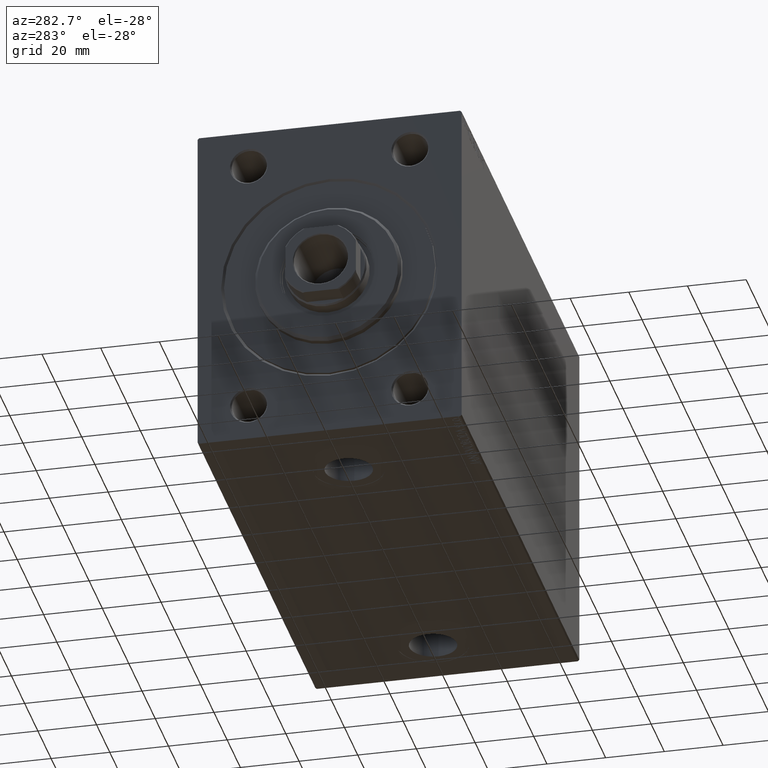
[diagram: clean part render]
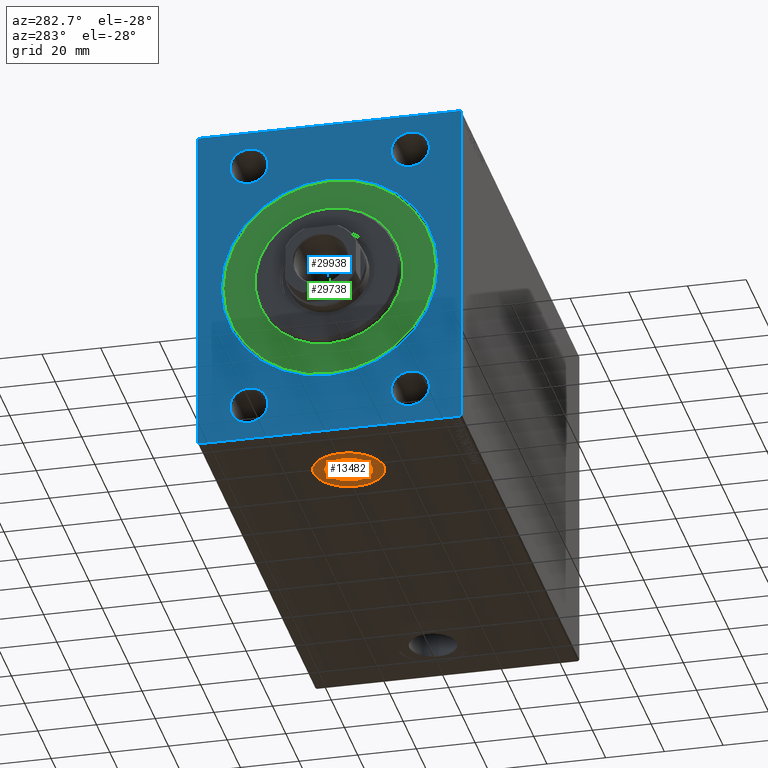
[diagram: same view with three faces highlighted in distinct colors, each labeled with its STEP entity id]
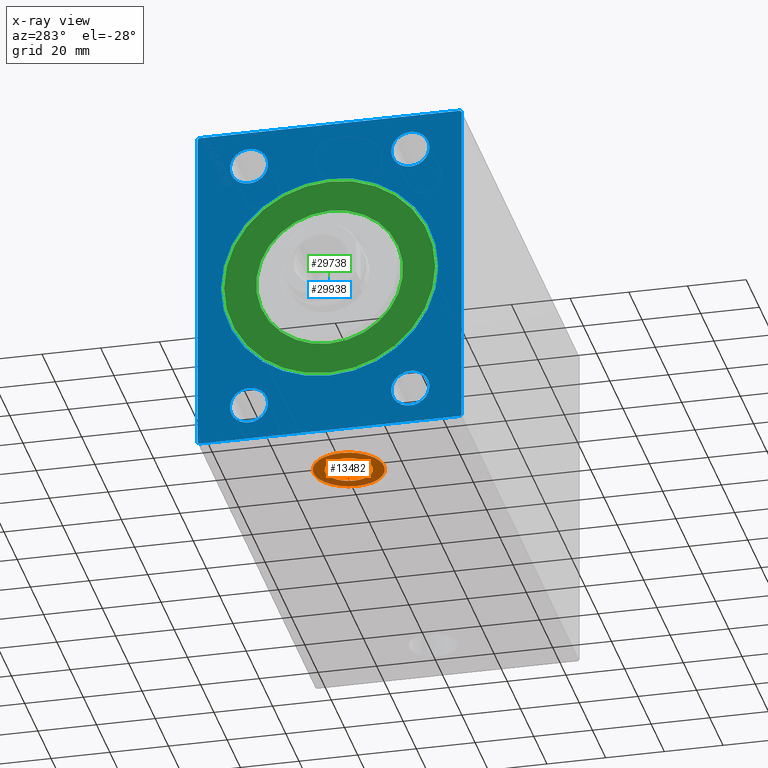
[diagram: x-ray of the same camera — body ghosted, the three highlighted faces saturated]
A machine part, auxiliary view with three faces highlighted in distinct colors.
The next image is the same camera in x-ray (body ghosted, the three faces saturated) — at least one of them is partly hidden behind the body in this view.
Their STEP definitions:

[orange] entity #13482 — the highlighted planar face has unit normal (0, 0, -1).
#344 = CARTESIAN_POINT ( 'NONE',  ( 17.00000000000000000, -3.767935990684166618E-15, -57.39999999999999147 ) ) ;
#1780 = DIRECTION ( 'NONE',  ( 0.000000000000000000, 0.000000000000000000, -1.000000000000000000 ) ) ;
#2003 = DIRECTION ( 'NONE',  ( 0.000000000000000000, 0.000000000000000000, -1.000000000000000000 ) ) ;
#2226 = CARTESIAN_POINT ( 'NONE',  ( 29.00000000000000000, -3.767935990684166618E-15, -57.39999999999999147 ) ) ;
#3555 = EDGE_LOOP ( 'NONE', ( #8517, #8887 ) ) ;
#4796 = FACE_BOUND ( 'NONE', #3555, .T. ) ;
#4941 = CIRCLE ( 'NONE', #43343, 8.084999999999999076 ) ;
#4994 = ORIENTED_EDGE ( 'NONE', *, *, #9388, .T. ) ;
#5274 = DIRECTION ( 'NONE',  ( -1.000000000000000000, 0.000000000000000000, 0.000000000000000000 ) ) ;
#5285 = EDGE_LOOP ( 'NONE', ( #34666, #4994 ) ) ;
#6137 = EDGE_CURVE ( 'NONE', #22817, #34442, #32312, .T. ) ;
#6621 = DIRECTION ( 'NONE',  ( 0.000000000000000000, 0.000000000000000000, -1.000000000000000000 ) ) ;
#8517 = ORIENTED_EDGE ( 'NONE', *, *, #45620, .F. ) ;
#8768 = VERTEX_POINT ( 'NONE', #31039 ) ;
#8887 = ORIENTED_EDGE ( 'NONE', *, *, #34395, .F. ) ;
#8977 = CIRCLE ( 'NONE', #36230, 8.084999999999999076 ) ;
#9388 = EDGE_CURVE ( 'NONE', #34442, #22817, #33122, .T. ) ;
#11768 = DIRECTION ( 'NONE',  ( 0.000000000000000000, 0.000000000000000000, -1.000000000000000000 ) ) ;
#13482 = ADVANCED_FACE ( 'NONE', ( #4796, #33437 ), #43846, .T. ) ;
#15552 = AXIS2_PLACEMENT_3D ( 'NONE', #26253, #2003, #30189 ) ;
#16569 = DIRECTION ( 'NONE',  ( -1.000000000000000000, 0.000000000000000000, 0.000000000000000000 ) ) ;
#17162 = CARTESIAN_POINT ( 'NONE',  ( 20.91500000000000270, -3.767935990684166618E-15, -57.39999999999999147 ) ) ;
#22079 = VERTEX_POINT ( 'NONE', #17162 ) ;
#22817 = VERTEX_POINT ( 'NONE', #344 ) ;
#25610 = CARTESIAN_POINT ( 'NONE',  ( 29.00000000000000000, -3.767935990684166618E-15, -57.39999999999999147 ) ) ;
#26079 = CARTESIAN_POINT ( 'NONE',  ( 29.00000000000000000, -3.767935990684166618E-15, -57.39999999999999147 ) ) ;
#26253 = CARTESIAN_POINT ( 'NONE',  ( 0.000000000000000000, 0.000000000000000000, -57.39999999999999147 ) ) ;
#30086 = AXIS2_PLACEMENT_3D ( 'NONE', #43637, #1780, #5274 ) ;
#30189 = DIRECTION ( 'NONE',  ( -1.000000000000000000, 0.000000000000000000, -0.000000000000000000 ) ) ;
#31039 = CARTESIAN_POINT ( 'NONE',  ( 37.08500000000000085, -2.777809053573531857E-15, -57.39999999999999147 ) ) ;
#32312 = CIRCLE ( 'NONE', #30086, 12.00000000000000000 ) ;
#33089 = AXIS2_PLACEMENT_3D ( 'NONE', #2226, #6621, #16569 ) ;
#33122 = CIRCLE ( 'NONE', #33089, 12.00000000000000000 ) ;
#33437 = FACE_OUTER_BOUND ( 'NONE', #5285, .T. ) ;
#34395 = EDGE_CURVE ( 'NONE', #8768, #22079, #4941, .T. ) ;
#34442 = VERTEX_POINT ( 'NONE', #39492 ) ;
#34666 = ORIENTED_EDGE ( 'NONE', *, *, #6137, .T. ) ;
#36230 = AXIS2_PLACEMENT_3D ( 'NONE', #26079, #44362, #40653 ) ;
#39492 = CARTESIAN_POINT ( 'NONE',  ( 41.00000000000000711, -2.298359831707342079E-15, -57.39999999999999147 ) ) ;
#40653 = DIRECTION ( 'NONE',  ( -1.000000000000000000, 0.000000000000000000, 0.000000000000000000 ) ) ;
#42985 = DIRECTION ( 'NONE',  ( -1.000000000000000000, 0.000000000000000000, 0.000000000000000000 ) ) ;
#43343 = AXIS2_PLACEMENT_3D ( 'NONE', #25610, #11768, #42985 ) ;
#43637 = CARTESIAN_POINT ( 'NONE',  ( 29.00000000000000000, -3.767935990684166618E-15, -57.39999999999999147 ) ) ;
#43846 = PLANE ( 'NONE',  #15552 ) ;
#44362 = DIRECTION ( 'NONE',  ( 0.000000000000000000, 0.000000000000000000, -1.000000000000000000 ) ) ;
#45620 = EDGE_CURVE ( 'NONE', #22079, #8768, #8977, .T. ) ;

[blue] entity #29938 — the highlighted planar face has unit normal (1, 0, 0).
#1 = FACE_BOUND ( 'NONE', #8071, .T. ) ;
#391 = CARTESIAN_POINT ( 'NONE',  ( 0.000000000000000000, -45.00000000000000000, 56.99999999999999289 ) ) ;
#1086 = EDGE_CURVE ( 'NONE', #1646, #45429, #27843, .T. ) ;
#1318 = CARTESIAN_POINT ( 'NONE',  ( 0.000000000000000000, 45.00000000000002842, -56.99999999999996447 ) ) ;
#1508 = EDGE_CURVE ( 'NONE', #29262, #28657, #15194, .T. ) ;
#1646 = VERTEX_POINT ( 'NONE', #11026 ) ;
#2504 = ORIENTED_EDGE ( 'NONE', *, *, #12825, .T. ) ;
#3392 = AXIS2_PLACEMENT_3D ( 'NONE', #28173, #27257, #9721 ) ;
#3579 = ORIENTED_EDGE ( 'NONE', *, *, #4152, .T. ) ;
#4152 = EDGE_CURVE ( 'NONE', #16555, #31194, #21168, .T. ) ;
#4794 = CARTESIAN_POINT ( 'NONE',  ( 0.000000000000000000, 45.00000000000001421, 57.00000000000000711 ) ) ;
#5014 = DIRECTION ( 'NONE',  ( 0.000000000000000000, 0.000000000000000000, -1.000000000000000000 ) ) ;
#5127 = CARTESIAN_POINT ( 'NONE',  ( 0.000000000000000000, -27.49999999999999645, -45.00000000000001421 ) ) ;
#5242 = EDGE_CURVE ( 'NONE', #35902, #39457, #24156, .T. ) ;
#5272 = EDGE_LOOP ( 'NONE', ( #33429, #2504 ) ) ;
#5277 = CIRCLE ( 'NONE', #24428, 6.499999999999977796 ) ;
#5797 = DIRECTION ( 'NONE',  ( 1.000000000000000000, 0.000000000000000000, 0.000000000000000000 ) ) ;
#5852 = DIRECTION ( 'NONE',  ( 0.000000000000000000, -1.000000000000000000, -1.541976423090495140E-16 ) ) ;
#5965 = CIRCLE ( 'NONE', #33217, 37.00000000000003553 ) ;
#6249 = AXIS2_PLACEMENT_3D ( 'NONE', #10824, #17986, #32725 ) ;
#6677 = ORIENTED_EDGE ( 'NONE', *, *, #23586, .T. ) ;
#6851 = VERTEX_POINT ( 'NONE', #42513 ) ;
#6996 = EDGE_LOOP ( 'NONE', ( #3579, #35693 ) ) ;
#7503 = CARTESIAN_POINT ( 'NONE',  ( 0.000000000000000000, -27.49999999999999645, 44.99999999999998579 ) ) ;
#7818 = VERTEX_POINT ( 'NONE', #38423 ) ;
#8071 = EDGE_LOOP ( 'NONE', ( #12850, #16868 ) ) ;
#8083 = AXIS2_PLACEMENT_3D ( 'NONE', #26048, #15438, #40161 ) ;
#8100 = ORIENTED_EDGE ( 'NONE', *, *, #23799, .T. ) ;
#8388 = DIRECTION ( 'NONE',  ( 1.000000000000000000, 0.000000000000000000, 0.000000000000000000 ) ) ;
#8390 = DIRECTION ( 'NONE',  ( -0.000000000000000000, -0.7071067811865672237, 0.7071067811865279218 ) ) ;
#8528 = VERTEX_POINT ( 'NONE', #37799 ) ;
#8671 = AXIS2_PLACEMENT_3D ( 'NONE', #43962, #29844, #26613 ) ;
#8697 = ORIENTED_EDGE ( 'NONE', *, *, #20781, .F. ) ;
#8952 = DIRECTION ( 'NONE',  ( 1.000000000000000000, 0.000000000000000000, 0.000000000000000000 ) ) ;
#9314 = LINE ( 'NONE', #23391, #41102 ) ;
#9503 = VECTOR ( 'NONE', #8390, 1000.000000000000000 ) ;
#9721 = DIRECTION ( 'NONE',  ( 0.000000000000000000, 0.000000000000000000, -1.000000000000000000 ) ) ;
#9982 = EDGE_CURVE ( 'NONE', #17808, #19911, #39077, .T. ) ;
#9995 = ORIENTED_EDGE ( 'NONE', *, *, #21619, .T. ) ;
#10217 = EDGE_CURVE ( 'NONE', #38871, #7818, #42018, .T. ) ;
#10296 = AXIS2_PLACEMENT_3D ( 'NONE', #37435, #5797, #27700 ) ;
#10319 = CARTESIAN_POINT ( 'NONE',  ( 0.000000000000000000, 27.50000000000000355, 38.50000000000000711 ) ) ;
#10824 = CARTESIAN_POINT ( 'NONE',  ( 0.000000000000000000, 27.50000000000000355, 44.99999999999998579 ) ) ;
#11026 = CARTESIAN_POINT ( 'NONE',  ( 0.000000000000000000, -27.49999999999999645, -51.49999999999999289 ) ) ;
#12142 = CARTESIAN_POINT ( 'NONE',  ( 0.000000000000000000, 27.50000000000000355, -38.50000000000003553 ) ) ;
#12825 = EDGE_CURVE ( 'NONE', #39457, #35902, #42082, .T. ) ;
#12850 = ORIENTED_EDGE ( 'NONE', *, *, #10217, .T. ) ;
#13183 = FACE_OUTER_BOUND ( 'NONE', #23055, .T. ) ;
#13221 = DIRECTION ( 'NONE',  ( 0.000000000000000000, 0.000000000000000000, -1.000000000000000000 ) ) ;
#13415 = FACE_BOUND ( 'NONE', #5272, .T. ) ;
#13658 = DIRECTION ( 'NONE',  ( 0.000000000000000000, 0.000000000000000000, -1.000000000000000000 ) ) ;
#14017 = DIRECTION ( 'NONE',  ( 0.000000000000000000, 0.000000000000000000, -1.000000000000000000 ) ) ;
#14590 = DIRECTION ( 'NONE',  ( 0.000000000000000000, 0.000000000000000000, -1.000000000000000000 ) ) ;
#15194 = LINE ( 'NONE', #1318, #43269 ) ;
#15438 = DIRECTION ( 'NONE',  ( 1.000000000000000000, 0.000000000000000000, 0.000000000000000000 ) ) ;
#16555 = VERTEX_POINT ( 'NONE', #34012 ) ;
#16576 = CIRCLE ( 'NONE', #6249, 6.499999999999977796 ) ;
#16598 = CARTESIAN_POINT ( 'NONE',  ( 0.000000000000000000, -27.49999999999999645, 38.50000000000000711 ) ) ;
#16676 = EDGE_CURVE ( 'NONE', #31194, #16555, #5965, .T. ) ;
#16868 = ORIENTED_EDGE ( 'NONE', *, *, #45466, .T. ) ;
#16879 = PLANE ( 'NONE',  #3392 ) ;
#17359 = CARTESIAN_POINT ( 'NONE',  ( 0.000000000000000000, 27.50000000000000355, -45.00000000000001421 ) ) ;
#17808 = VERTEX_POINT ( 'NONE', #23733 ) ;
#17986 = DIRECTION ( 'NONE',  ( 1.000000000000000000, 0.000000000000000000, 0.000000000000000000 ) ) ;
#18001 = VECTOR ( 'NONE', #14017, 1000.000000000000000 ) ;
#18280 = DIRECTION ( 'NONE',  ( 1.000000000000000000, 0.000000000000000000, 0.000000000000000000 ) ) ;
#18391 = LINE ( 'NONE', #42440, #18001 ) ;
#18537 = DIRECTION ( 'NONE',  ( 0.000000000000000000, 0.000000000000000000, -1.000000000000000000 ) ) ;
#18612 = DIRECTION ( 'NONE',  ( -0.000000000000000000, 0.7071067811865474617, 0.7071067811865474617 ) ) ;
#18761 = ORIENTED_EDGE ( 'NONE', *, *, #21207, .F. ) ;
#19190 = ORIENTED_EDGE ( 'NONE', *, *, #34875, .T. ) ;
#19212 = DIRECTION ( 'NONE',  ( 1.000000000000000000, 0.000000000000000000, 0.000000000000000000 ) ) ;
#19234 = CARTESIAN_POINT ( 'NONE',  ( 0.000000000000000000, -44.49999999999997158, -57.49999999999999289 ) ) ;
#19336 = CARTESIAN_POINT ( 'NONE',  ( 0.000000000000000000, 0.000000000000000000, 0.000000000000000000 ) ) ;
#19753 = VECTOR ( 'NONE', #34102, 1000.000000000000114 ) ;
#19911 = VERTEX_POINT ( 'NONE', #10319 ) ;
#20008 = LINE ( 'NONE', #34321, #19753 ) ;
#20129 = CARTESIAN_POINT ( 'NONE',  ( 0.000000000000000000, -27.49999999999999645, -38.50000000000003553 ) ) ;
#20141 = CARTESIAN_POINT ( 'NONE',  ( 0.000000000000000000, -27.49999999999999645, -45.00000000000001421 ) ) ;
#20531 = VERTEX_POINT ( 'NONE', #4794 ) ;
#20664 = AXIS2_PLACEMENT_3D ( 'NONE', #7503, #8388, #36326 ) ;
#20781 = EDGE_CURVE ( 'NONE', #38373, #6851, #18391, .T. ) ;
#21081 = EDGE_LOOP ( 'NONE', ( #32369, #8100 ) ) ;
#21168 = CIRCLE ( 'NONE', #27052, 37.00000000000003553 ) ;
#21207 = EDGE_CURVE ( 'NONE', #40657, #28657, #45502, .T. ) ;
#21382 = ORIENTED_EDGE ( 'NONE', *, *, #29425, .F. ) ;
#21510 = LINE ( 'NONE', #21726, #38352 ) ;
#21619 = EDGE_CURVE ( 'NONE', #38373, #21700, #28327, .T. ) ;
#21700 = VERTEX_POINT ( 'NONE', #24865 ) ;
#21726 = CARTESIAN_POINT ( 'NONE',  ( 0.000000000000000000, 45.00000000000002842, -57.49999999999999289 ) ) ;
#23055 = EDGE_LOOP ( 'NONE', ( #8697, #9995, #21382, #19190, #40784, #25265, #18761, #39353 ) ) ;
#23391 = CARTESIAN_POINT ( 'NONE',  ( 0.000000000000000000, 45.00000000000001421, 57.50000000000000711 ) ) ;
#23586 = EDGE_CURVE ( 'NONE', #45429, #1646, #39447, .T. ) ;
#23607 = DIRECTION ( 'NONE',  ( 1.000000000000000000, 0.000000000000000000, 0.000000000000000000 ) ) ;
#23733 = CARTESIAN_POINT ( 'NONE',  ( 0.000000000000000000, 27.50000000000000355, 51.49999999999996447 ) ) ;
#23799 = EDGE_CURVE ( 'NONE', #19911, #17808, #16576, .T. ) ;
#24156 = CIRCLE ( 'NONE', #8671, 6.499999999999977796 ) ;
#24428 = AXIS2_PLACEMENT_3D ( 'NONE', #17359, #30983, #13658 ) ;
#24865 = CARTESIAN_POINT ( 'NONE',  ( 0.000000000000000000, -44.49999999999997158, 57.49999999999999289 ) ) ;
#25265 = ORIENTED_EDGE ( 'NONE', *, *, #1508, .T. ) ;
#25977 = ORIENTED_EDGE ( 'NONE', *, *, #1086, .T. ) ;
#26048 = CARTESIAN_POINT ( 'NONE',  ( 0.000000000000000000, 27.50000000000000355, -45.00000000000001421 ) ) ;
#26613 = DIRECTION ( 'NONE',  ( 0.000000000000000000, 0.000000000000000000, -1.000000000000000000 ) ) ;
#27052 = AXIS2_PLACEMENT_3D ( 'NONE', #19336, #8952, #5014 ) ;
#27257 = DIRECTION ( 'NONE',  ( 1.000000000000000000, 0.000000000000000000, 0.000000000000000000 ) ) ;
#27700 = DIRECTION ( 'NONE',  ( 0.000000000000000000, 0.000000000000000000, -1.000000000000000000 ) ) ;
#27843 = CIRCLE ( 'NONE', #39667, 6.499999999999977796 ) ;
#28173 = CARTESIAN_POINT ( 'NONE',  ( 0.000000000000000000, 0.000000000000000000, 0.000000000000000000 ) ) ;
#28327 = LINE ( 'NONE', #391, #34990 ) ;
#28657 = VERTEX_POINT ( 'NONE', #40770 ) ;
#29262 = VERTEX_POINT ( 'NONE', #43295 ) ;
#29425 = EDGE_CURVE ( 'NONE', #8528, #21700, #9314, .T. ) ;
#29844 = DIRECTION ( 'NONE',  ( 1.000000000000000000, 0.000000000000000000, 0.000000000000000000 ) ) ;
#29938 = ADVANCED_FACE ( 'NONE', ( #38351, #38584, #13415, #31644, #1, #13183 ), #16879, .F. ) ;
#29956 = DIRECTION ( 'NONE',  ( 0.000000000000000000, -0.7071067811865279218, -0.7071067811865672237 ) ) ;
#30026 = CARTESIAN_POINT ( 'NONE',  ( 0.000000000000000000, -45.00000000000000000, 56.99999999999999289 ) ) ;
#30983 = DIRECTION ( 'NONE',  ( 1.000000000000000000, 0.000000000000000000, 0.000000000000000000 ) ) ;
#31194 = VERTEX_POINT ( 'NONE', #44100 ) ;
#31644 = FACE_BOUND ( 'NONE', #21081, .T. ) ;
#32134 = CARTESIAN_POINT ( 'NONE',  ( 0.000000000000000000, 0.000000000000000000, 0.000000000000000000 ) ) ;
#32369 = ORIENTED_EDGE ( 'NONE', *, *, #9982, .T. ) ;
#32725 = DIRECTION ( 'NONE',  ( 0.000000000000000000, 0.000000000000000000, -1.000000000000000000 ) ) ;
#33217 = AXIS2_PLACEMENT_3D ( 'NONE', #32134, #18280, #14590 ) ;
#33429 = ORIENTED_EDGE ( 'NONE', *, *, #5242, .T. ) ;
#34012 = CARTESIAN_POINT ( 'NONE',  ( 0.000000000000000000, 0.000000000000000000, 37.00000000000003553 ) ) ;
#34102 = DIRECTION ( 'NONE',  ( -0.000000000000000000, 0.7071067811865474617, -0.7071067811865474617 ) ) ;
#34266 = AXIS2_PLACEMENT_3D ( 'NONE', #5127, #19212, #18537 ) ;
#34321 = CARTESIAN_POINT ( 'NONE',  ( 0.000000000000000000, 44.50000000000001421, 57.50000000000000711 ) ) ;
#34875 = EDGE_CURVE ( 'NONE', #8528, #20531, #20008, .T. ) ;
#34990 = VECTOR ( 'NONE', #18612, 1000.000000000000114 ) ;
#35693 = ORIENTED_EDGE ( 'NONE', *, *, #16676, .T. ) ;
#35902 = VERTEX_POINT ( 'NONE', #45156 ) ;
#36326 = DIRECTION ( 'NONE',  ( 0.000000000000000000, 0.000000000000000000, -1.000000000000000000 ) ) ;
#36392 = VECTOR ( 'NONE', #37876, 1000.000000000000000 ) ;
#37083 = EDGE_CURVE ( 'NONE', #40657, #6851, #40258, .T. ) ;
#37435 = CARTESIAN_POINT ( 'NONE',  ( 0.000000000000000000, 27.50000000000000355, 44.99999999999998579 ) ) ;
#37799 = CARTESIAN_POINT ( 'NONE',  ( 0.000000000000000000, 44.50000000000001421, 57.50000000000000711 ) ) ;
#37876 = DIRECTION ( 'NONE',  ( 0.000000000000000000, 1.000000000000000000, 0.000000000000000000 ) ) ;
#38351 = FACE_BOUND ( 'NONE', #6996, .T. ) ;
#38352 = VECTOR ( 'NONE', #42995, 1000.000000000000000 ) ;
#38373 = VERTEX_POINT ( 'NONE', #30026 ) ;
#38423 = CARTESIAN_POINT ( 'NONE',  ( 0.000000000000000000, 27.50000000000000355, -51.49999999999999289 ) ) ;
#38584 = FACE_BOUND ( 'NONE', #43891, .T. ) ;
#38871 = VERTEX_POINT ( 'NONE', #12142 ) ;
#39077 = CIRCLE ( 'NONE', #10296, 6.499999999999977796 ) ;
#39353 = ORIENTED_EDGE ( 'NONE', *, *, #37083, .T. ) ;
#39447 = CIRCLE ( 'NONE', #34266, 6.499999999999977796 ) ;
#39457 = VERTEX_POINT ( 'NONE', #16598 ) ;
#39667 = AXIS2_PLACEMENT_3D ( 'NONE', #20141, #23607, #13221 ) ;
#40161 = DIRECTION ( 'NONE',  ( 0.000000000000000000, 0.000000000000000000, -1.000000000000000000 ) ) ;
#40258 = LINE ( 'NONE', #19234, #9503 ) ;
#40657 = VERTEX_POINT ( 'NONE', #45141 ) ;
#40770 = CARTESIAN_POINT ( 'NONE',  ( 0.000000000000000000, 44.50000000000002842, -57.49999999999999289 ) ) ;
#40784 = ORIENTED_EDGE ( 'NONE', *, *, #41875, .F. ) ;
#41102 = VECTOR ( 'NONE', #5852, 1000.000000000000000 ) ;
#41875 = EDGE_CURVE ( 'NONE', #29262, #20531, #21510, .T. ) ;
#42018 = CIRCLE ( 'NONE', #8083, 6.499999999999977796 ) ;
#42082 = CIRCLE ( 'NONE', #20664, 6.499999999999977796 ) ;
#42440 = CARTESIAN_POINT ( 'NONE',  ( 0.000000000000000000, -45.00000000000000000, 57.49999999999999289 ) ) ;
#42513 = CARTESIAN_POINT ( 'NONE',  ( 0.000000000000000000, -45.00000000000000000, -56.99999999999999289 ) ) ;
#42995 = DIRECTION ( 'NONE',  ( 0.000000000000000000, -1.206764157201257045E-16, 1.000000000000000000 ) ) ;
#43269 = VECTOR ( 'NONE', #29956, 1000.000000000000000 ) ;
#43295 = CARTESIAN_POINT ( 'NONE',  ( 0.000000000000000000, 45.00000000000002842, -56.99999999999996447 ) ) ;
#43891 = EDGE_LOOP ( 'NONE', ( #6677, #25977 ) ) ;
#43962 = CARTESIAN_POINT ( 'NONE',  ( 0.000000000000000000, -27.49999999999999645, 44.99999999999998579 ) ) ;
#44100 = CARTESIAN_POINT ( 'NONE',  ( 0.000000000000000000, 4.531193156845210737E-15, -37.00000000000003553 ) ) ;
#45061 = CARTESIAN_POINT ( 'NONE',  ( 0.000000000000000000, -45.00000000000000000, -57.49999999999999289 ) ) ;
#45141 = CARTESIAN_POINT ( 'NONE',  ( 0.000000000000000000, -44.49999999999997158, -57.49999999999999289 ) ) ;
#45156 = CARTESIAN_POINT ( 'NONE',  ( 0.000000000000000000, -27.49999999999999645, 51.49999999999996447 ) ) ;
#45429 = VERTEX_POINT ( 'NONE', #20129 ) ;
#45466 = EDGE_CURVE ( 'NONE', #7818, #38871, #5277, .T. ) ;
#45502 = LINE ( 'NONE', #45061, #36392 ) ;

[green] entity #29738 — the highlighted planar face has unit normal (1, -0, -0).
#775 = VERTEX_POINT ( 'NONE', #3104 ) ;
#1387 = CIRCLE ( 'NONE', #23529, 25.00000000000000000 ) ;
#2442 = ORIENTED_EDGE ( 'NONE', *, *, #9431, .F. ) ;
#2858 = AXIS2_PLACEMENT_3D ( 'NONE', #11010, #35491, #31791 ) ;
#3104 = CARTESIAN_POINT ( 'NONE',  ( 0.000000000000000000, 4.408728476930470856E-15, 36.00000000000000000 ) ) ;
#3467 = AXIS2_PLACEMENT_3D ( 'NONE', #12262, #22881, #43704 ) ;
#4287 = CIRCLE ( 'NONE', #40422, 36.00000000000000000 ) ;
#6089 = EDGE_CURVE ( 'NONE', #31499, #775, #4287, .T. ) ;
#7065 = AXIS2_PLACEMENT_3D ( 'NONE', #39354, #28031, #25463 ) ;
#8808 = FACE_OUTER_BOUND ( 'NONE', #43511, .T. ) ;
#9367 = EDGE_CURVE ( 'NONE', #10376, #43729, #1387, .T. ) ;
#9431 = EDGE_CURVE ( 'NONE', #775, #31499, #22766, .T. ) ;
#9636 = CARTESIAN_POINT ( 'NONE',  ( 0.000000000000000000, 0.000000000000000000, 0.000000000000000000 ) ) ;
#9753 = ORIENTED_EDGE ( 'NONE', *, *, #9367, .F. ) ;
#10376 = VERTEX_POINT ( 'NONE', #24425 ) ;
#11010 = CARTESIAN_POINT ( 'NONE',  ( 0.000000000000000000, 0.000000000000000000, 0.000000000000000000 ) ) ;
#12262 = CARTESIAN_POINT ( 'NONE',  ( 0.000000000000000000, 0.000000000000000000, 0.000000000000000000 ) ) ;
#12731 = PLANE ( 'NONE',  #3467 ) ;
#13011 = ORIENTED_EDGE ( 'NONE', *, *, #6089, .F. ) ;
#13039 = EDGE_LOOP ( 'NONE', ( #26398, #9753 ) ) ;
#15500 = FACE_BOUND ( 'NONE', #13039, .T. ) ;
#20023 = DIRECTION ( 'NONE',  ( 0.000000000000000000, 0.000000000000000000, -1.000000000000000000 ) ) ;
#22766 = CIRCLE ( 'NONE', #2858, 36.00000000000000000 ) ;
#22881 = DIRECTION ( 'NONE',  ( -1.000000000000000000, 0.000000000000000000, 0.000000000000000000 ) ) ;
#23480 = DIRECTION ( 'NONE',  ( 1.000000000000000000, -0.000000000000000000, 0.000000000000000000 ) ) ;
#23529 = AXIS2_PLACEMENT_3D ( 'NONE', #9636, #23480, #20023 ) ;
#24425 = CARTESIAN_POINT ( 'NONE',  ( 0.000000000000000000, 3.061616997868383043E-15, -25.00000000000000000 ) ) ;
#25316 = EDGE_CURVE ( 'NONE', #43729, #10376, #28416, .T. ) ;
#25463 = DIRECTION ( 'NONE',  ( 0.000000000000000000, 0.000000000000000000, -1.000000000000000000 ) ) ;
#26398 = ORIENTED_EDGE ( 'NONE', *, *, #25316, .F. ) ;
#28031 = DIRECTION ( 'NONE',  ( 1.000000000000000000, -0.000000000000000000, 0.000000000000000000 ) ) ;
#28416 = CIRCLE ( 'NONE', #7065, 25.00000000000000000 ) ;
#29738 = ADVANCED_FACE ( 'NONE', ( #15500, #8808 ), #12731, .F. ) ;
#31499 = VERTEX_POINT ( 'NONE', #44041 ) ;
#31791 = DIRECTION ( 'NONE',  ( 0.000000000000000000, 0.000000000000000000, 1.000000000000000000 ) ) ;
#33214 = DIRECTION ( 'NONE',  ( -1.000000000000000000, 0.000000000000000000, 0.000000000000000000 ) ) ;
#33444 = CARTESIAN_POINT ( 'NONE',  ( 0.000000000000000000, 0.000000000000000000, 0.000000000000000000 ) ) ;
#35491 = DIRECTION ( 'NONE',  ( -1.000000000000000000, 0.000000000000000000, 0.000000000000000000 ) ) ;
#36906 = DIRECTION ( 'NONE',  ( 0.000000000000000000, 0.000000000000000000, 1.000000000000000000 ) ) ;
#39354 = CARTESIAN_POINT ( 'NONE',  ( 0.000000000000000000, 0.000000000000000000, 0.000000000000000000 ) ) ;
#40422 = AXIS2_PLACEMENT_3D ( 'NONE', #33444, #33214, #36906 ) ;
#40679 = CARTESIAN_POINT ( 'NONE',  ( 0.000000000000000000, 0.000000000000000000, 25.00000000000000000 ) ) ;
#43511 = EDGE_LOOP ( 'NONE', ( #13011, #2442 ) ) ;
#43704 = DIRECTION ( 'NONE',  ( 0.000000000000000000, 0.000000000000000000, 1.000000000000000000 ) ) ;
#43729 = VERTEX_POINT ( 'NONE', #40679 ) ;
#44041 = CARTESIAN_POINT ( 'NONE',  ( 0.000000000000000000, 0.000000000000000000, -36.00000000000000000 ) ) ;